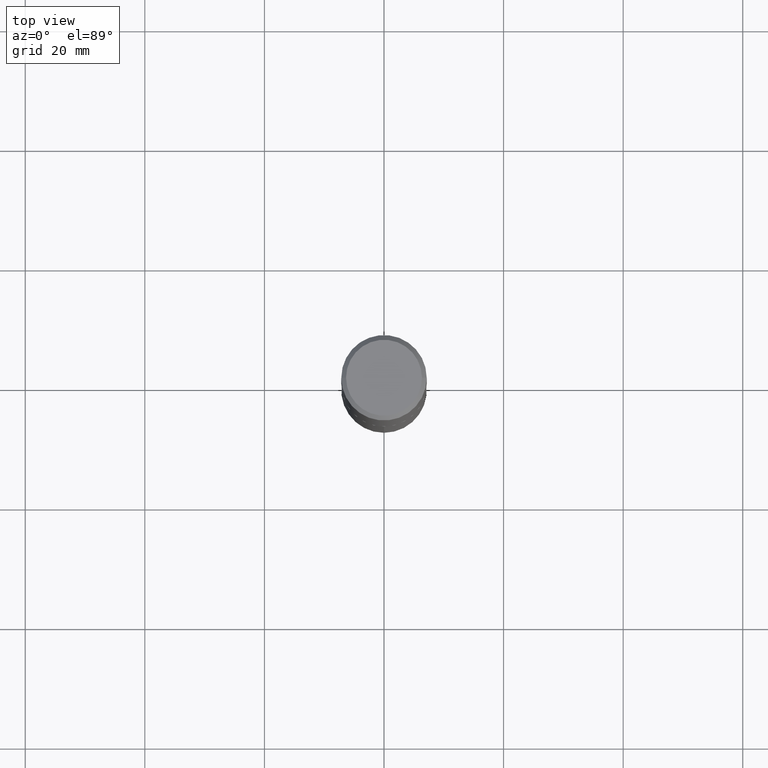
[diagram: clean part render]
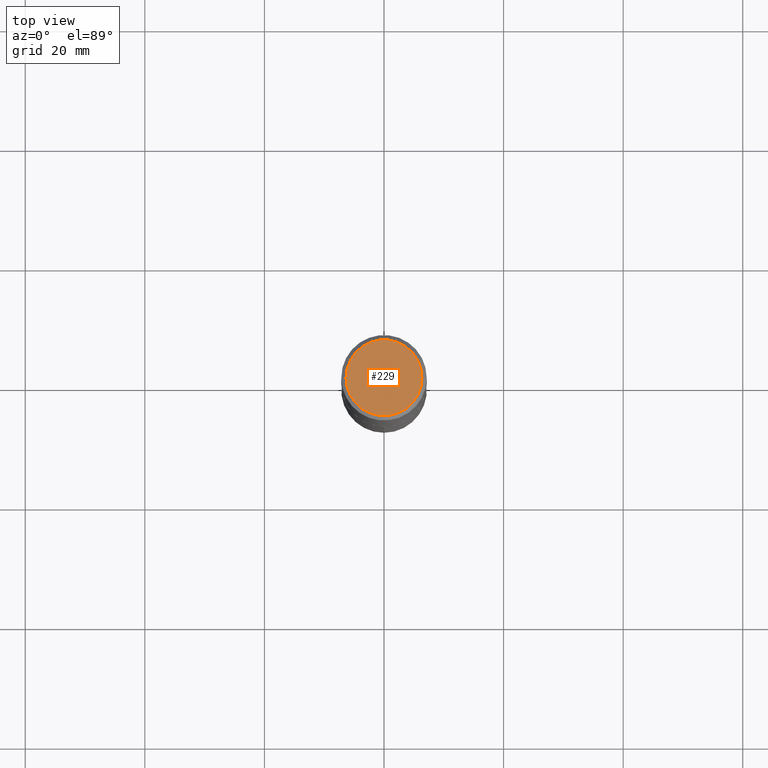
[diagram: same view with one face highlighted and labeled with its STEP entity id]
A machine part, top view. The second image highlights one B-rep face of the part: STEP entity #229.
In plain terms, the highlighted planar face has unit normal (0, -0, -1).
Its self-contained STEP definition (entity closure, byte-faithful):
#25 = EDGE_LOOP ( 'NONE', ( #152, #231 ) ) ;
#36 = CARTESIAN_POINT ( 'NONE',  ( -3.511444677578687467E-47, 5.013412370314203908E-33, 1.435898372000272269E-18 ) ) ;
#54 = DIRECTION ( 'NONE',  ( -1.000000000000000000, 6.982962677686265922E-15, -4.876176775795935793E-29 ) ) ;
#98 = DIRECTION ( 'NONE',  ( -2.445468806185136597E-29, 3.491481338843145583E-15, 1.000000000000000000 ) ) ;
#106 = CIRCLE ( 'NONE', #318, 0.2500000000000000000 ) ;
#132 = DIRECTION ( 'NONE',  ( -2.445468806185136597E-29, 3.491481338843145583E-15, 1.000000000000000000 ) ) ;
#134 = CARTESIAN_POINT ( 'NONE',  ( 0.2500000000000000000, -1.876874176577487622E-15, 2.871796744013211380E-18 ) ) ;
#139 = VERTEX_POINT ( 'NONE', #160 ) ;
#145 = EDGE_CURVE ( 'NONE', #139, #381, #106, .T. ) ;
#152 = ORIENTED_EDGE ( 'NONE', *, *, #145, .T. ) ;
#159 = DIRECTION ( 'NONE',  ( 2.438088387897960049E-29, -3.491481338843145188E-15, -1.000000000000000000 ) ) ;
#160 = CARTESIAN_POINT ( 'NONE',  ( -0.2500000000000000000, 1.800295065340990045E-15, 2.871796743988145016E-18 ) ) ;
#189 = FACE_OUTER_BOUND ( 'NONE', #25, .T. ) ;
#195 = DIRECTION ( 'NONE',  ( 1.000000000000000000, -6.982962677686266711E-15, 4.876242311950517246E-29 ) ) ;
#229 = ADVANCED_FACE ( 'NONE', ( #189 ), #314, .F. ) ;
#231 = ORIENTED_EDGE ( 'NONE', *, *, #295, .T. ) ;
#233 = CIRCLE ( 'NONE', #322, 0.2500000000000000000 ) ;
#283 = DIRECTION ( 'NONE',  ( 1.000000000000000000, -6.982962677686266711E-15, 4.876242311950517246E-29 ) ) ;
#295 = EDGE_CURVE ( 'NONE', #381, #139, #233, .T. ) ;
#314 = PLANE ( 'NONE',  #358 ) ;
#317 = CARTESIAN_POINT ( 'NONE',  ( -7.022889355157374934E-47, 1.002682474062840782E-32, 2.871796744000544539E-18 ) ) ;
#318 = AXIS2_PLACEMENT_3D ( 'NONE', #334, #98, #283 ) ;
#322 = AXIS2_PLACEMENT_3D ( 'NONE', #317, #132, #195 ) ;
#334 = CARTESIAN_POINT ( 'NONE',  ( -7.022889355157374934E-47, 1.002682474062840782E-32, 2.871796744000544539E-18 ) ) ;
#358 = AXIS2_PLACEMENT_3D ( 'NONE', #36, #159, #54 ) ;
#381 = VERTEX_POINT ( 'NONE', #134 ) ;